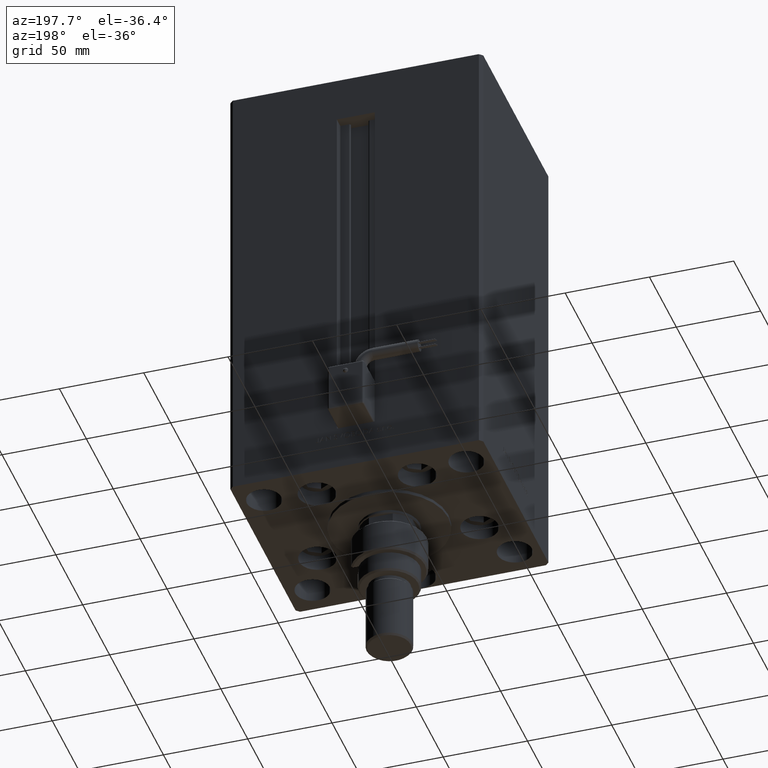
[diagram: clean part render]
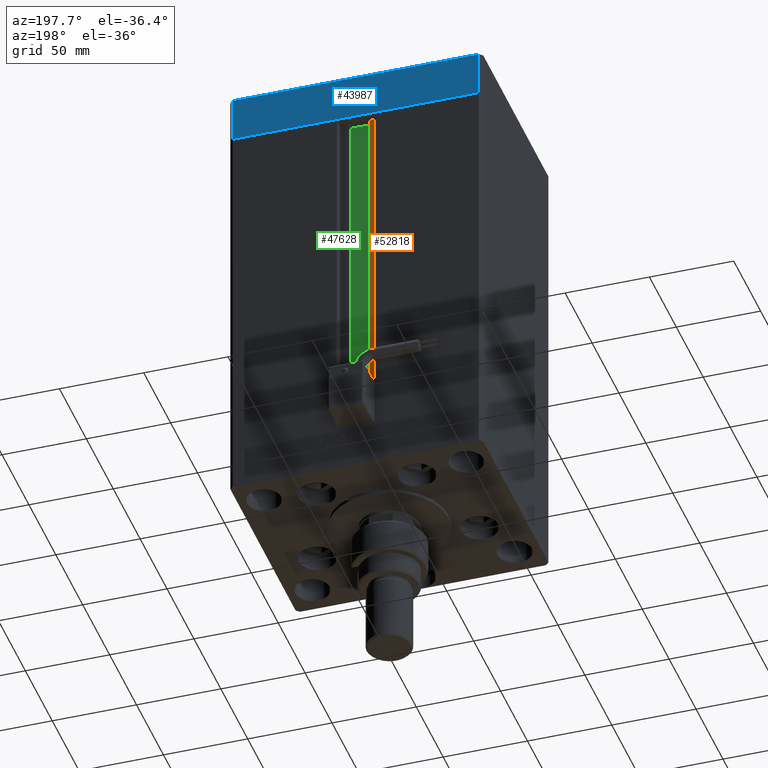
[diagram: same view with three faces highlighted in distinct colors, each labeled with its STEP entity id]
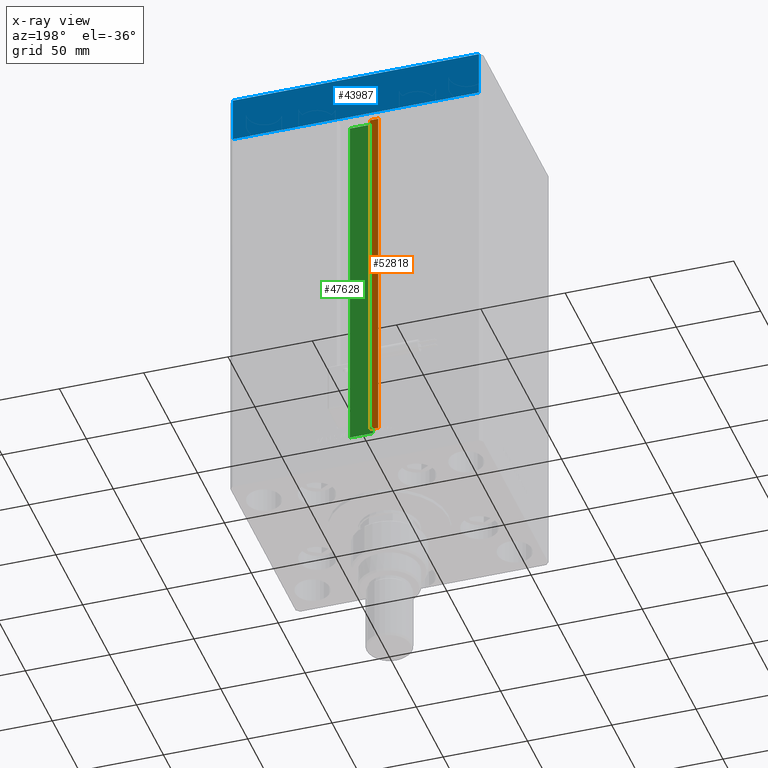
[diagram: x-ray of the same camera — body ghosted, the three highlighted faces saturated]
A machine part, auxiliary view with three faces highlighted in distinct colors.
The next image is the same camera in x-ray (body ghosted, the three faces saturated) — at least one of them is partly hidden behind the body in this view.
Their STEP definitions:

[orange] entity #52818 — the highlighted planar face has unit normal (0, -1, 0).
#312 = ORIENTED_EDGE ( 'NONE', *, *, #28583, .F. ) ;
#583 = LINE ( 'NONE', #5155, #37537 ) ;
#3001 = LINE ( 'NONE', #35497, #35022 ) ;
#5155 = CARTESIAN_POINT ( 'NONE',  ( -6.183333333334001480, 55.99999999999999289, 0.000000000000000000 ) ) ;
#5492 = CARTESIAN_POINT ( 'NONE',  ( 0.000000000000000000, 55.99999999999999289, 217.0000000000000000 ) ) ;
#5787 = ORIENTED_EDGE ( 'NONE', *, *, #51675, .T. ) ;
#7982 = DIRECTION ( 'NONE',  ( 0.000000000000000000, -1.000000000000000000, -0.000000000000000000 ) ) ;
#11066 = DIRECTION ( 'NONE',  ( 1.000000000000000000, -0.000000000000000000, -0.000000000000000000 ) ) ;
#12253 = CARTESIAN_POINT ( 'NONE',  ( -6.183333333334001480, 55.99999999999999289, 0.000000000000000000 ) ) ;
#12870 = VECTOR ( 'NONE', #32180, 1000.000000000000000 ) ;
#13883 = ORIENTED_EDGE ( 'NONE', *, *, #14799, .F. ) ;
#14799 = EDGE_CURVE ( 'NONE', #34970, #47208, #3001, .T. ) ;
#16866 = CARTESIAN_POINT ( 'NONE',  ( -11.25000000000000178, 55.99999999999999289, 0.000000000000000000 ) ) ;
#22521 = ORIENTED_EDGE ( 'NONE', *, *, #42963, .F. ) ;
#26227 = CARTESIAN_POINT ( 'NONE',  ( -6.183333333334001480, 55.99999999999999289, 0.000000000000000000 ) ) ;
#27651 = LINE ( 'NONE', #16866, #12870 ) ;
#28583 = EDGE_CURVE ( 'NONE', #47208, #47347, #583, .T. ) ;
#29305 = DIRECTION ( 'NONE',  ( -0.000000000000000000, -0.000000000000000000, 1.000000000000000000 ) ) ;
#32180 = DIRECTION ( 'NONE',  ( -0.000000000000000000, -0.000000000000000000, 1.000000000000000000 ) ) ;
#32657 = PLANE ( 'NONE',  #38628 ) ;
#32846 = CARTESIAN_POINT ( 'NONE',  ( -11.25000000000000178, 55.99999999999999289, 0.000000000000000000 ) ) ;
#33261 = CARTESIAN_POINT ( 'NONE',  ( -11.25000000000000178, 55.99999999999999289, 217.0000000000000000 ) ) ;
#33311 = EDGE_LOOP ( 'NONE', ( #312, #13883, #5787, #22521 ) ) ;
#34970 = VERTEX_POINT ( 'NONE', #32846 ) ;
#35022 = VECTOR ( 'NONE', #11066, 1000.000000000000000 ) ;
#35497 = CARTESIAN_POINT ( 'NONE',  ( -6.183333333334001480, 55.99999999999999289, 0.000000000000000000 ) ) ;
#37537 = VECTOR ( 'NONE', #29305, 1000.000000000000000 ) ;
#37969 = DIRECTION ( 'NONE',  ( -1.000000000000000000, 0.000000000000000000, 0.000000000000000000 ) ) ;
#38628 = AXIS2_PLACEMENT_3D ( 'NONE', #12253, #7982, #40459 ) ;
#40459 = DIRECTION ( 'NONE',  ( 0.000000000000000000, 0.000000000000000000, -1.000000000000000000 ) ) ;
#41246 = FACE_OUTER_BOUND ( 'NONE', #33311, .T. ) ;
#42963 = EDGE_CURVE ( 'NONE', #47347, #47867, #44966, .T. ) ;
#44857 = VECTOR ( 'NONE', #37969, 1000.000000000000000 ) ;
#44966 = LINE ( 'NONE', #5492, #44857 ) ;
#47208 = VERTEX_POINT ( 'NONE', #26227 ) ;
#47347 = VERTEX_POINT ( 'NONE', #48234 ) ;
#47867 = VERTEX_POINT ( 'NONE', #33261 ) ;
#48234 = CARTESIAN_POINT ( 'NONE',  ( -6.183333333334001480, 55.99999999999999289, 217.0000000000000000 ) ) ;
#51675 = EDGE_CURVE ( 'NONE', #34970, #47867, #27651, .T. ) ;
#52818 = ADVANCED_FACE ( 'NONE', ( #41246 ), #32657, .F. ) ;

[blue] entity #43987 — the highlighted planar face has unit normal (-0, 1, 0).
#1737 = PLANE ( 'NONE',  #6311 ) ;
#2041 = CARTESIAN_POINT ( 'NONE',  ( 72.99999999999992895, 62.50000000000001421, -27.00000000000000000 ) ) ;
#2052 = CARTESIAN_POINT ( 'NONE',  ( 72.99999999999992895, 62.50000000000001421, -27.00000000000000000 ) ) ;
#2528 = FACE_OUTER_BOUND ( 'NONE', #27959, .T. ) ;
#2635 = VECTOR ( 'NONE', #14340, 1000.000000000000000 ) ;
#6311 = AXIS2_PLACEMENT_3D ( 'NONE', #35014, #42282, #51395 ) ;
#7750 = VECTOR ( 'NONE', #34989, 1000.000000000000000 ) ;
#10377 = LINE ( 'NONE', #2041, #33327 ) ;
#14156 = CARTESIAN_POINT ( 'NONE',  ( -73.00000000000001421, 62.49999999999998579, -27.00000000000000000 ) ) ;
#14340 = DIRECTION ( 'NONE',  ( -1.000000000000000000, -1.901066822988282689E-16, 0.000000000000000000 ) ) ;
#14870 = VERTEX_POINT ( 'NONE', #32509 ) ;
#15118 = CARTESIAN_POINT ( 'NONE',  ( 72.99999999999992895, 62.50000000000001421, -27.00000000000000000 ) ) ;
#17188 = EDGE_CURVE ( 'NONE', #44156, #14870, #25457, .T. ) ;
#20707 = ORIENTED_EDGE ( 'NONE', *, *, #48594, .T. ) ;
#25375 = CARTESIAN_POINT ( 'NONE',  ( 72.99999999999992895, 62.50000000000001421, 0.000000000000000000 ) ) ;
#25457 = LINE ( 'NONE', #14156, #38544 ) ;
#25859 = ORIENTED_EDGE ( 'NONE', *, *, #34088, .F. ) ;
#25991 = DIRECTION ( 'NONE',  ( 0.000000000000000000, 0.000000000000000000, 1.000000000000000000 ) ) ;
#27959 = EDGE_LOOP ( 'NONE', ( #25859, #50364, #20707, #44227 ) ) ;
#30442 = LINE ( 'NONE', #51658, #2635 ) ;
#32509 = CARTESIAN_POINT ( 'NONE',  ( -73.00000000000001421, 62.49999999999998579, 0.000000000000000000 ) ) ;
#33327 = VECTOR ( 'NONE', #39633, 1000.000000000000000 ) ;
#34088 = EDGE_CURVE ( 'NONE', #43802, #14870, #30442, .T. ) ;
#34989 = DIRECTION ( 'NONE',  ( 0.000000000000000000, 0.000000000000000000, 1.000000000000000000 ) ) ;
#35014 = CARTESIAN_POINT ( 'NONE',  ( 72.99999999999992895, 62.50000000000001421, -27.00000000000000000 ) ) ;
#36829 = EDGE_CURVE ( 'NONE', #42722, #43802, #43308, .T. ) ;
#37383 = CARTESIAN_POINT ( 'NONE',  ( -73.00000000000001421, 62.49999999999998579, -27.00000000000000000 ) ) ;
#38544 = VECTOR ( 'NONE', #25991, 1000.000000000000000 ) ;
#39633 = DIRECTION ( 'NONE',  ( -1.000000000000000000, -1.901066822988282689E-16, 0.000000000000000000 ) ) ;
#42282 = DIRECTION ( 'NONE',  ( -1.901066822988282936E-16, 1.000000000000000000, 0.000000000000000000 ) ) ;
#42722 = VERTEX_POINT ( 'NONE', #2052 ) ;
#43308 = LINE ( 'NONE', #15118, #7750 ) ;
#43802 = VERTEX_POINT ( 'NONE', #25375 ) ;
#43987 = ADVANCED_FACE ( 'NONE', ( #2528 ), #1737, .T. ) ;
#44156 = VERTEX_POINT ( 'NONE', #37383 ) ;
#44227 = ORIENTED_EDGE ( 'NONE', *, *, #17188, .T. ) ;
#48594 = EDGE_CURVE ( 'NONE', #42722, #44156, #10377, .T. ) ;
#50364 = ORIENTED_EDGE ( 'NONE', *, *, #36829, .F. ) ;
#51395 = DIRECTION ( 'NONE',  ( -1.000000000000000000, -1.901066822988282936E-16, 0.000000000000000000 ) ) ;
#51658 = CARTESIAN_POINT ( 'NONE',  ( 72.99999999999992895, 62.50000000000001421, 0.000000000000000000 ) ) ;

[green] entity #47628 — the highlighted planar face has unit normal (0, -1, 0).
#5695 = LINE ( 'NONE', #5962, #51038 ) ;
#5962 = CARTESIAN_POINT ( 'NONE',  ( 6.876153656360466826, 51.99999999999986500, 0.000000000000000000 ) ) ;
#5972 = CARTESIAN_POINT ( 'NONE',  ( 6.876153656360466826, 51.99999999999986500, 217.0000000000000000 ) ) ;
#7501 = LINE ( 'NONE', #35948, #45578 ) ;
#7769 = DIRECTION ( 'NONE',  ( -1.000000000000000000, 0.000000000000000000, 0.000000000000000000 ) ) ;
#7863 = VECTOR ( 'NONE', #20477, 1000.000000000000000 ) ;
#12534 = CARTESIAN_POINT ( 'NONE',  ( -6.876153656360466826, 51.99999999999986500, 0.000000000000000000 ) ) ;
#12756 = EDGE_CURVE ( 'NONE', #28578, #14763, #23833, .T. ) ;
#13640 = VECTOR ( 'NONE', #16301, 1000.000000000000000 ) ;
#14763 = VERTEX_POINT ( 'NONE', #5972 ) ;
#16301 = DIRECTION ( 'NONE',  ( -0.000000000000000000, -0.000000000000000000, 1.000000000000000000 ) ) ;
#17643 = VERTEX_POINT ( 'NONE', #27244 ) ;
#18038 = DIRECTION ( 'NONE',  ( 1.000000000000000000, -0.000000000000000000, -0.000000000000000000 ) ) ;
#18305 = ORIENTED_EDGE ( 'NONE', *, *, #39268, .T. ) ;
#20477 = DIRECTION ( 'NONE',  ( -0.000000000000000000, -0.000000000000000000, 1.000000000000000000 ) ) ;
#21704 = EDGE_LOOP ( 'NONE', ( #46226, #48625, #18305, #37616 ) ) ;
#22482 = EDGE_CURVE ( 'NONE', #37745, #28578, #5695, .T. ) ;
#23833 = LINE ( 'NONE', #43235, #13640 ) ;
#27244 = CARTESIAN_POINT ( 'NONE',  ( -6.876153656360466826, 51.99999999999986500, 217.0000000000000000 ) ) ;
#27758 = DIRECTION ( 'NONE',  ( 0.000000000000000000, -1.000000000000000000, -0.000000000000000000 ) ) ;
#28578 = VERTEX_POINT ( 'NONE', #33600 ) ;
#30970 = CARTESIAN_POINT ( 'NONE',  ( 6.876153656360466826, 51.99999999999986500, 0.000000000000000000 ) ) ;
#33600 = CARTESIAN_POINT ( 'NONE',  ( 6.876153656360466826, 51.99999999999986500, 0.000000000000000000 ) ) ;
#35812 = PLANE ( 'NONE',  #36831 ) ;
#35948 = CARTESIAN_POINT ( 'NONE',  ( 0.000000000000000000, 51.99999999999986500, 217.0000000000000000 ) ) ;
#36831 = AXIS2_PLACEMENT_3D ( 'NONE', #30970, #27758, #43329 ) ;
#37616 = ORIENTED_EDGE ( 'NONE', *, *, #40016, .F. ) ;
#37745 = VERTEX_POINT ( 'NONE', #12534 ) ;
#39268 = EDGE_CURVE ( 'NONE', #37745, #17643, #44910, .T. ) ;
#39296 = FACE_OUTER_BOUND ( 'NONE', #21704, .T. ) ;
#40016 = EDGE_CURVE ( 'NONE', #14763, #17643, #7501, .T. ) ;
#41420 = CARTESIAN_POINT ( 'NONE',  ( -6.876153656360466826, 51.99999999999986500, 0.000000000000000000 ) ) ;
#43235 = CARTESIAN_POINT ( 'NONE',  ( 6.876153656360466826, 51.99999999999986500, 0.000000000000000000 ) ) ;
#43329 = DIRECTION ( 'NONE',  ( 0.000000000000000000, 0.000000000000000000, -1.000000000000000000 ) ) ;
#44910 = LINE ( 'NONE', #41420, #7863 ) ;
#45578 = VECTOR ( 'NONE', #7769, 1000.000000000000000 ) ;
#46226 = ORIENTED_EDGE ( 'NONE', *, *, #12756, .F. ) ;
#47628 = ADVANCED_FACE ( 'NONE', ( #39296 ), #35812, .F. ) ;
#48625 = ORIENTED_EDGE ( 'NONE', *, *, #22482, .F. ) ;
#51038 = VECTOR ( 'NONE', #18038, 1000.000000000000000 ) ;